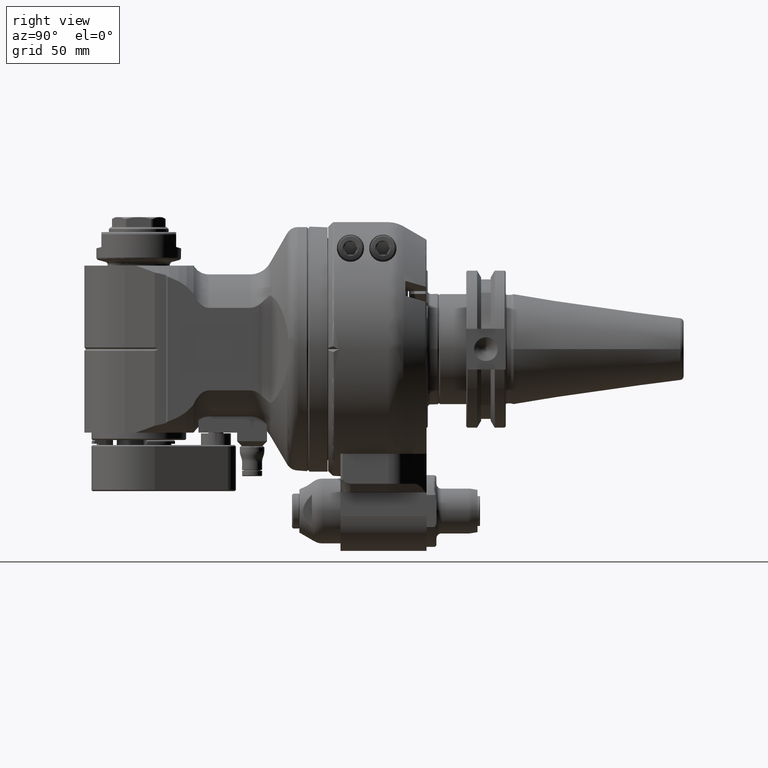
[diagram: clean part render]
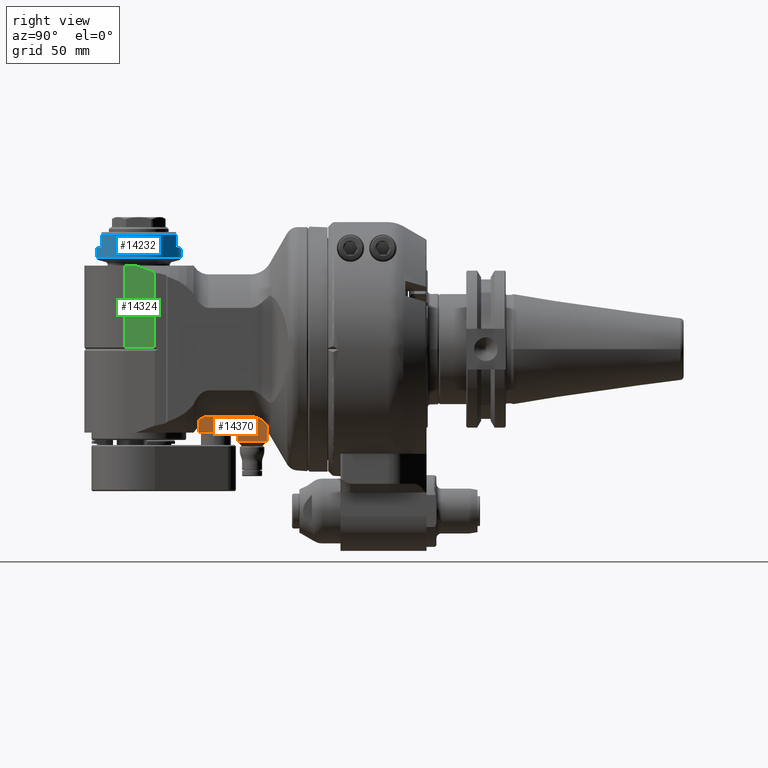
[diagram: same view with three faces highlighted in distinct colors, each labeled with its STEP entity id]
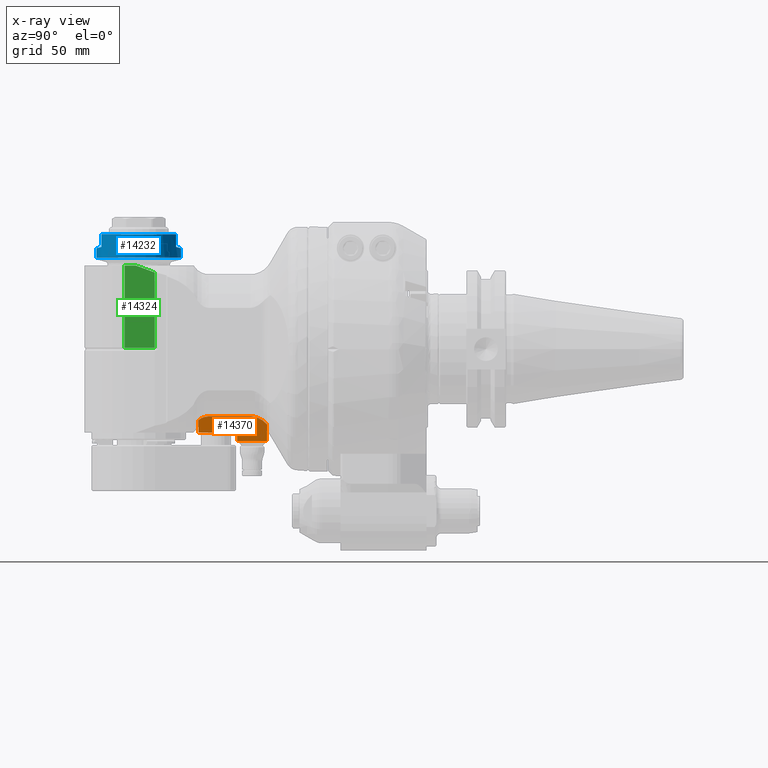
[diagram: x-ray of the same camera — body ghosted, the three highlighted faces saturated]
A machine part, right view with three faces highlighted in distinct colors.
The next image is the same camera in x-ray (body ghosted, the three faces saturated) — at least one of them is partly hidden behind the body in this view.
Their STEP definitions:

[orange] entity #14370 — the highlighted planar face has unit normal (1, 0, -0).
#87=B_SPLINE_CURVE_WITH_KNOTS('',3,(#22254,#22255,#22256,#22257,#22258,
#22259,#22260,#22261,#22262,#22263,#22264,#22265),.UNSPECIFIED.,.F.,.F.,
(4,2,2,2,2,4),(-3.47563852123537,-3.4169091801371,-3.24618549335491,-3.07546180657272,
-2.91354086424383,-2.75161992191493),.UNSPECIFIED.);
#95=B_SPLINE_CURVE_WITH_KNOTS('',3,(#22580,#22581,#22582,#22583,#22584,
#22585,#22586,#22587,#22588,#22589),.UNSPECIFIED.,.F.,.F.,(4,2,2,2,4),(-2.14714879216461,
-2.02132054251014,-1.89549229285568,-1.76278724492251,-1.73390503975143),
 .UNSPECIFIED.);
#1009=LINE('',#22809,#1989);
#1014=LINE('',#22822,#1994);
#1015=LINE('',#22824,#1995);
#1016=LINE('',#22825,#1996);
#1017=LINE('',#22827,#1997);
#1018=LINE('',#22828,#1998);
#1989=VECTOR('',#17899,15.5);
#1994=VECTOR('',#17910,3.5);
#1995=VECTOR('',#17913,16.77201463612);
#1996=VECTOR('',#17914,5.028221509122);
#1997=VECTOR('',#17915,12.);
#1998=VECTOR('',#17916,6.719711863672);
#3218=FACE_OUTER_BOUND('',#4172,.T.);
#4172=EDGE_LOOP('',(#10329,#10330,#10331,#10332,#10333,#10334,#10335,#10336));
#6028=VERTEX_POINT('',#22251);
#6029=VERTEX_POINT('',#22253);
#6088=VERTEX_POINT('',#22577);
#6089=VERTEX_POINT('',#22579);
#6157=VERTEX_POINT('',#22806);
#6158=VERTEX_POINT('',#22808);
#6163=VERTEX_POINT('',#22820);
#6164=VERTEX_POINT('',#22826);
#7534=EDGE_CURVE('',#6029,#6028,#87,.T.);
#7626=EDGE_CURVE('',#6089,#6088,#95,.T.);
#7729=EDGE_CURVE('',#6158,#6157,#1009,.T.);
#7736=EDGE_CURVE('',#6163,#6157,#1014,.T.);
#7737=EDGE_CURVE('',#6089,#6028,#1015,.T.);
#7738=EDGE_CURVE('',#6088,#6158,#1016,.T.);
#7739=EDGE_CURVE('',#6164,#6163,#1017,.T.);
#7740=EDGE_CURVE('',#6164,#6029,#1018,.T.);
#10329=ORIENTED_EDGE('',*,*,#7737,.F.);
#10330=ORIENTED_EDGE('',*,*,#7626,.T.);
#10331=ORIENTED_EDGE('',*,*,#7738,.T.);
#10332=ORIENTED_EDGE('',*,*,#7729,.T.);
#10333=ORIENTED_EDGE('',*,*,#7736,.F.);
#10334=ORIENTED_EDGE('',*,*,#7739,.F.);
#10335=ORIENTED_EDGE('',*,*,#7740,.T.);
#10336=ORIENTED_EDGE('',*,*,#7534,.T.);
#13855=PLANE('',#15556);
#14370=ADVANCED_FACE('',(#3218),#13855,.T.);
#15556=AXIS2_PLACEMENT_3D('',#22823,#17911,#17912);
#17899=DIRECTION('',(-1.,0.,7.285075367331E-9));
#17910=DIRECTION('',(0.,-1.,8.06560913296E-9));
#17911=DIRECTION('center_axis',(0.,0.,1.));
#17912=DIRECTION('ref_axis',(-1.,0.,0.));
#17913=DIRECTION('',(-1.,2.374546004365E-13,-4.942910884198E-13));
#17914=DIRECTION('',(0.,1.,0.));
#17915=DIRECTION('',(1.,0.,0.));
#17916=DIRECTION('',(0.,-1.,4.300235967712E-9));
#22251=CARTESIAN_POINT('',(35.16580758206,27.03701175063,12.99999983062));
#22253=CARTESIAN_POINT('',(28.5000000036704,30.2802881625511,12.9999998863299));
#22254=CARTESIAN_POINT('Ctrl Pts',(28.5000000105604,30.2802881682947,12.99999983062));
#22255=CARTESIAN_POINT('Ctrl Pts',(28.631659792513,30.1223470298177,12.99999983062));
#22256=CARTESIAN_POINT('Ctrl Pts',(28.7658394681226,29.9716209944044,12.99999983062));
#22257=CARTESIAN_POINT('Ctrl Pts',(29.2912565670434,29.4158131689353,12.99999983062));
#22258=CARTESIAN_POINT('Ctrl Pts',(29.7576562912874,29.0008886619755,12.99999983062));
#22259=CARTESIAN_POINT('Ctrl Pts',(30.7676379148125,28.2803011686386,12.99999983062));
#22260=CARTESIAN_POINT('Ctrl Pts',(31.3114315125013,27.9749349466719,12.99999983062));
#22261=CARTESIAN_POINT('Ctrl Pts',(32.3262131947443,27.5280683043941,12.99999983062));
#22262=CARTESIAN_POINT('Ctrl Pts',(32.8874470048164,27.3402117390465,12.99999983062));
#22263=CARTESIAN_POINT('Ctrl Pts',(34.0373540101226,27.0945806769516,12.99999983062));
#22264=CARTESIAN_POINT('Ctrl Pts',(34.626071107547,27.0370117506332,12.99999983062));
#22265=CARTESIAN_POINT('Ctrl Pts',(35.16580758197,27.0370117506332,12.99999983062));
#22577=CARTESIAN_POINT('',(56.,28.47177849088,12.99999983062));
#22579=CARTESIAN_POINT('',(51.93782221817,27.03701175063,12.99999983062));
#22580=CARTESIAN_POINT('Ctrl Pts',(51.93782221817,27.0370117506332,12.99999983062));
#22581=CARTESIAN_POINT('Ctrl Pts',(52.3572497170182,27.0370117506332,12.99999983062));
#22582=CARTESIAN_POINT('Ctrl Pts',(52.8147485422833,27.081703491657,12.99999983062));
#22583=CARTESIAN_POINT('Ctrl Pts',(53.7083613314764,27.272469991275,12.99999983062));
#22584=CARTESIAN_POINT('Ctrl Pts',(54.1445072011879,27.4183952621068,12.99999983062));
#22585=CARTESIAN_POINT('Ctrl Pts',(54.933196427592,27.7657136132776,12.99999983062));
#22586=CARTESIAN_POINT('Ctrl Pts',(55.355839682832,28.0031577576042,12.99999983062));
#22587=CARTESIAN_POINT('Ctrl Pts',(55.8336285994497,28.3443804351613,12.99999983062));
#22588=CARTESIAN_POINT('Ctrl Pts',(55.917677409013,28.4072927010432,12.99999983062));
#22589=CARTESIAN_POINT('Ctrl Pts',(55.9999999999996,28.4717784908806,12.99999983062));
#22806=CARTESIAN_POINT('',(40.5,33.5,12.9999999430825));
#22808=CARTESIAN_POINT('',(56.,33.5,12.99999983062));
#22809=CARTESIAN_POINT('',(56.,33.5,12.99999983062));
#22820=CARTESIAN_POINT('',(40.4999999996426,37.0000000003565,12.9999999149331));
#22822=CARTESIAN_POINT('',(40.5,37.,12.99999991531));
#22823=CARTESIAN_POINT('Origin',(51.93782221817,27.,12.99999983062));
#22824=CARTESIAN_POINT('',(51.93782221818,27.03701175063,12.99999983063));
#22825=CARTESIAN_POINT('',(56.,28.47177849088,12.99999983062));
#22826=CARTESIAN_POINT('',(28.5000000003571,37.0000000003561,12.9999999149324));
#22827=CARTESIAN_POINT('',(28.5,37.,12.99999991531));
#22828=CARTESIAN_POINT('',(28.5,37.,12.99999991531));

[blue] entity #14232 — the highlighted cylindrical surface (bore or boss wall) has radius 17 mm, axis along (0, -0, 1).
#40=ELLIPSE('',#15236,17.5996950669713,17.);
#41=ELLIPSE('',#15237,17.5996950669713,17.);
#868=LINE('',#21658,#1848);
#869=LINE('',#21672,#1849);
#871=LINE('',#21679,#1851);
#872=LINE('',#21683,#1852);
#873=LINE('',#21686,#1853);
#1848=VECTOR('',#17120,5.000000000003);
#1849=VECTOR('',#17121,5.000000000003);
#1851=VECTOR('',#17129,5.);
#1852=VECTOR('',#17132,5.);
#1853=VECTOR('',#17135,17.);
#2807=CYLINDRICAL_SURFACE('',#15234,17.);
#3080=FACE_OUTER_BOUND('',#3989,.T.);
#3989=EDGE_LOOP('',(#9615,#9616,#9617,#9618,#9619,#9620,#9621,#9622,#9623,
#9624,#9625,#9626,#9627));
#5031=CIRCLE('',#15232,17.);
#5032=CIRCLE('',#15235,17.);
#5033=CIRCLE('',#15238,17.);
#5034=CIRCLE('',#15239,17.);
#5035=CIRCLE('',#15240,17.);
#5876=VERTEX_POINT('',#21628);
#5877=VERTEX_POINT('',#21641);
#5878=VERTEX_POINT('',#21656);
#5879=VERTEX_POINT('',#21657);
#5880=VERTEX_POINT('',#21671);
#5881=VERTEX_POINT('',#21675);
#5882=VERTEX_POINT('',#21678);
#5883=VERTEX_POINT('',#21680);
#5884=VERTEX_POINT('',#21682);
#5885=VERTEX_POINT('',#21685);
#5886=VERTEX_POINT('',#21687);
#7333=EDGE_CURVE('',#5876,#5877,#5031,.T.);
#7335=EDGE_CURVE('',#5878,#5879,#868,.T.);
#7337=EDGE_CURVE('',#5880,#5877,#869,.T.);
#7339=EDGE_CURVE('',#5878,#5881,#5032,.T.);
#7340=EDGE_CURVE('',#5880,#5879,#40,.T.);
#7341=EDGE_CURVE('',#5876,#5882,#871,.T.);
#7342=EDGE_CURVE('',#5883,#5882,#41,.T.);
#7343=EDGE_CURVE('',#5883,#5884,#872,.T.);
#7344=EDGE_CURVE('',#5881,#5884,#5033,.T.);
#7345=EDGE_CURVE('',#5881,#5885,#873,.T.);
#7346=EDGE_CURVE('',#5886,#5885,#5034,.T.);
#7347=EDGE_CURVE('',#5885,#5886,#5035,.T.);
#9615=ORIENTED_EDGE('',*,*,#7339,.F.);
#9616=ORIENTED_EDGE('',*,*,#7335,.T.);
#9617=ORIENTED_EDGE('',*,*,#7340,.F.);
#9618=ORIENTED_EDGE('',*,*,#7337,.T.);
#9619=ORIENTED_EDGE('',*,*,#7333,.F.);
#9620=ORIENTED_EDGE('',*,*,#7341,.T.);
#9621=ORIENTED_EDGE('',*,*,#7342,.F.);
#9622=ORIENTED_EDGE('',*,*,#7343,.T.);
#9623=ORIENTED_EDGE('',*,*,#7344,.F.);
#9624=ORIENTED_EDGE('',*,*,#7345,.T.);
#9625=ORIENTED_EDGE('',*,*,#7346,.F.);
#9626=ORIENTED_EDGE('',*,*,#7347,.F.);
#9627=ORIENTED_EDGE('',*,*,#7345,.F.);
#14232=ADVANCED_FACE('',(#3080),#2807,.T.);
#15232=AXIS2_PLACEMENT_3D('',#21642,#17116,#17117);
#15234=AXIS2_PLACEMENT_3D('',#21674,#17123,#17124);
#15235=AXIS2_PLACEMENT_3D('',#21676,#17125,#17126);
#15236=AXIS2_PLACEMENT_3D('',#21677,#17127,#17128);
#15237=AXIS2_PLACEMENT_3D('',#21681,#17130,#17131);
#15238=AXIS2_PLACEMENT_3D('',#21684,#17133,#17134);
#15239=AXIS2_PLACEMENT_3D('',#21688,#17136,#17137);
#15240=AXIS2_PLACEMENT_3D('',#21689,#17138,#17139);
#17116=DIRECTION('center_axis',(0.,-1.,0.));
#17117=DIRECTION('ref_axis',(0.,0.,1.));
#17120=DIRECTION('',(0.,1.,0.));
#17121=DIRECTION('',(0.,-1.,0.));
#17123=DIRECTION('center_axis',(0.,-1.,0.));
#17124=DIRECTION('ref_axis',(0.,0.,1.));
#17125=DIRECTION('center_axis',(0.,-1.,0.));
#17126=DIRECTION('ref_axis',(-0.882352941176485,0.,-0.470588235294092));
#17127=DIRECTION('center_axis',(-0.258819045102493,-0.965925826289076,0.));
#17128=DIRECTION('ref_axis',(-0.965925826289076,0.258819045102493,0.));
#17129=DIRECTION('',(0.,1.,0.));
#17130=DIRECTION('center_axis',(0.258819045102493,-0.965925826289076,0.));
#17131=DIRECTION('ref_axis',(-0.965925826289076,-0.258819045102493,0.));
#17132=DIRECTION('',(0.,-1.,0.));
#17133=DIRECTION('center_axis',(0.,-1.,0.));
#17134=DIRECTION('ref_axis',(-0.882352941176485,0.,-0.470588235294092));
#17135=DIRECTION('',(0.,1.,0.));
#17136=DIRECTION('center_axis',(0.,1.,0.));
#17137=DIRECTION('ref_axis',(-1.,0.,0.));
#17138=DIRECTION('center_axis',(0.,1.,0.));
#17139=DIRECTION('ref_axis',(-1.,0.,0.));
#21628=CARTESIAN_POINT('',(94.99999995534,-46.,8.));
#21641=CARTESIAN_POINT('',(64.99999995534,-46.,8.));
#21642=CARTESIAN_POINT('Origin',(79.99999995534,-46.,0.));
#21656=CARTESIAN_POINT('',(64.99999995534,-46.,-8.));
#21657=CARTESIAN_POINT('',(64.99999995534,-41.,-8.));
#21658=CARTESIAN_POINT('',(64.99999995534,-46.,-8.));
#21671=CARTESIAN_POINT('',(64.99999995534,-41.,8.));
#21672=CARTESIAN_POINT('',(64.99999995534,-41.,8.));
#21674=CARTESIAN_POINT('Origin',(79.99999995534,-40.5,0.));
#21675=CARTESIAN_POINT('',(79.99999995534,-46.,-17.));
#21676=CARTESIAN_POINT('Origin',(79.99999995534,-46.,0.));
#21677=CARTESIAN_POINT('Origin',(79.99999995534,-45.0192378864643,0.));
#21678=CARTESIAN_POINT('',(94.99999995534,-41.,8.));
#21679=CARTESIAN_POINT('',(94.99999995534,-46.,8.));
#21680=CARTESIAN_POINT('',(94.99999995534,-41.,-8.));
#21681=CARTESIAN_POINT('Origin',(79.99999995534,-45.0192378864664,0.));
#21682=CARTESIAN_POINT('',(94.99999995534,-46.,-8.));
#21683=CARTESIAN_POINT('',(94.99999995534,-41.,-8.));
#21684=CARTESIAN_POINT('Origin',(79.99999995534,-46.,0.));
#21685=CARTESIAN_POINT('',(79.99999995534,-36.74042535392,-17.));
#21686=CARTESIAN_POINT('',(79.99999995534,-40.5,-17.));
#21687=CARTESIAN_POINT('',(96.99999995534,-36.74042535392,2.0818995585505E-15));
#21688=CARTESIAN_POINT('Origin',(79.99999995534,-36.74042535392,0.));
#21689=CARTESIAN_POINT('Origin',(79.99999995534,-36.74042535392,0.));

[green] entity #14324 — the highlighted planar face has unit normal (-0.9659, 0.2588, 0).
#47=ELLIPSE('',#15447,277.889209732578,61.2357652891665);
#357=(
BOUNDED_CURVE()
B_SPLINE_CURVE(2,(#22474,#22475,#22476),.UNSPECIFIED.,.F.,.F.)
B_SPLINE_CURVE_WITH_KNOTS((3,3),(0.608381640688116,0.668691475764147),
 .UNSPECIFIED.)
CURVE()
GEOMETRIC_REPRESENTATION_ITEM()
RATIONAL_B_SPLINE_CURVE((1.05761857197981,1.05761857197981,1.05705235019718))
REPRESENTATION_ITEM('')
);
#880=LINE('',#21775,#1860);
#959=LINE('',#22470,#1939);
#960=LINE('',#22478,#1940);
#961=LINE('',#22480,#1941);
#1860=VECTOR('',#17202,10.);
#1939=VECTOR('',#17635,32.83431457505);
#1940=VECTOR('',#17638,10.);
#1941=VECTOR('',#17641,12.0000000000002);
#3172=FACE_OUTER_BOUND('',#4113,.T.);
#4113=EDGE_LOOP('',(#10075,#10076,#10077,#10078,#10079,#10080));
#5912=VERTEX_POINT('',#21772);
#5913=VERTEX_POINT('',#21774);
#6068=VERTEX_POINT('',#22464);
#6070=VERTEX_POINT('',#22472);
#6071=VERTEX_POINT('',#22473);
#6072=VERTEX_POINT('',#22477);
#7380=EDGE_CURVE('',#5912,#5913,#880,.T.);
#7596=EDGE_CURVE('',#6068,#5912,#959,.T.);
#7597=EDGE_CURVE('',#6070,#6071,#357,.T.);
#7598=EDGE_CURVE('',#6071,#6072,#960,.T.);
#7599=EDGE_CURVE('',#6072,#5913,#47,.T.);
#7600=EDGE_CURVE('',#6068,#6070,#961,.T.);
#10075=ORIENTED_EDGE('',*,*,#7597,.T.);
#10076=ORIENTED_EDGE('',*,*,#7598,.T.);
#10077=ORIENTED_EDGE('',*,*,#7599,.T.);
#10078=ORIENTED_EDGE('',*,*,#7380,.F.);
#10079=ORIENTED_EDGE('',*,*,#7596,.F.);
#10080=ORIENTED_EDGE('',*,*,#7600,.T.);
#13837=PLANE('',#15446);
#14324=ADVANCED_FACE('',(#3172),#13837,.F.);
#15446=AXIS2_PLACEMENT_3D('',#22471,#17636,#17637);
#15447=AXIS2_PLACEMENT_3D('',#22479,#17639,#17640);
#17202=DIRECTION('',(-0.965925826289076,0.,0.258819045102493));
#17635=DIRECTION('',(0.,-1.,0.));
#17636=DIRECTION('center_axis',(-0.258819045102493,0.,-0.965925826289076));
#17637=DIRECTION('ref_axis',(-0.965925826289076,0.,0.258819045102493));
#17638=DIRECTION('',(0.,-1.,0.));
#17639=DIRECTION('center_axis',(0.258819045102493,0.,0.965925826289076));
#17640=DIRECTION('ref_axis',(0.965925826289076,9.58848046552275E-17,-0.258819045102493));
#17641=DIRECTION('',(-0.96592582466048,-1.25847124017997E-8,0.258819051180495));
#21772=CARTESIAN_POINT('',(85.69401899226,-33.5,21.25036817836));
#21774=CARTESIAN_POINT('',(81.0975985452634,-33.5000040521373,22.4819815355245));
#21775=CARTESIAN_POINT('',(88.4937441281061,-33.5,20.5001840891808));
#22464=CARTESIAN_POINT('',(85.69401899226,-0.6656854249492,21.25036817836));
#22470=CARTESIAN_POINT('',(85.69401899226,-0.6656854249492,21.25036817836));
#22471=CARTESIAN_POINT('Origin',(71.70020252422,-33.5,25.));
#22472=CARTESIAN_POINT('',(74.1029090849762,-0.665685506928045,24.3561967501563));
#22473=CARTESIAN_POINT('',(73.5662279235237,-0.652829558110548,24.5000000005895));
#22474=CARTESIAN_POINT('Ctrl Pts',(74.1029090767865,-0.665685424943195,
24.3561967195909));
#22475=CARTESIAN_POINT('Ctrl Pts',(73.8347121628431,-0.665685424943117,
24.4280598660946));
#22476=CARTESIAN_POINT('Ctrl Pts',(73.5662279236132,-0.652829559497624,
24.5000000011767));
#22477=CARTESIAN_POINT('',(73.566227928,-30.71080615823,24.5));
#22478=CARTESIAN_POINT('',(73.5662279280047,-16.7500000000001,24.5));
#22479=CARTESIAN_POINT('Origin',(305.789439788788,0.,-37.7240220818513));
#22480=CARTESIAN_POINT('',(85.69401899226,-0.6656854249492,21.25036817836));